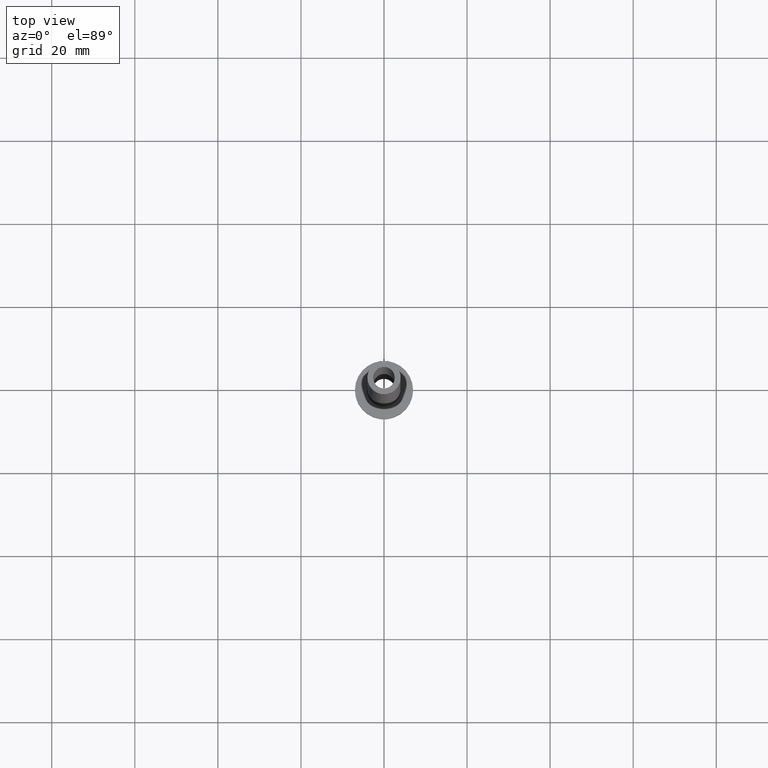
[diagram: clean part render]
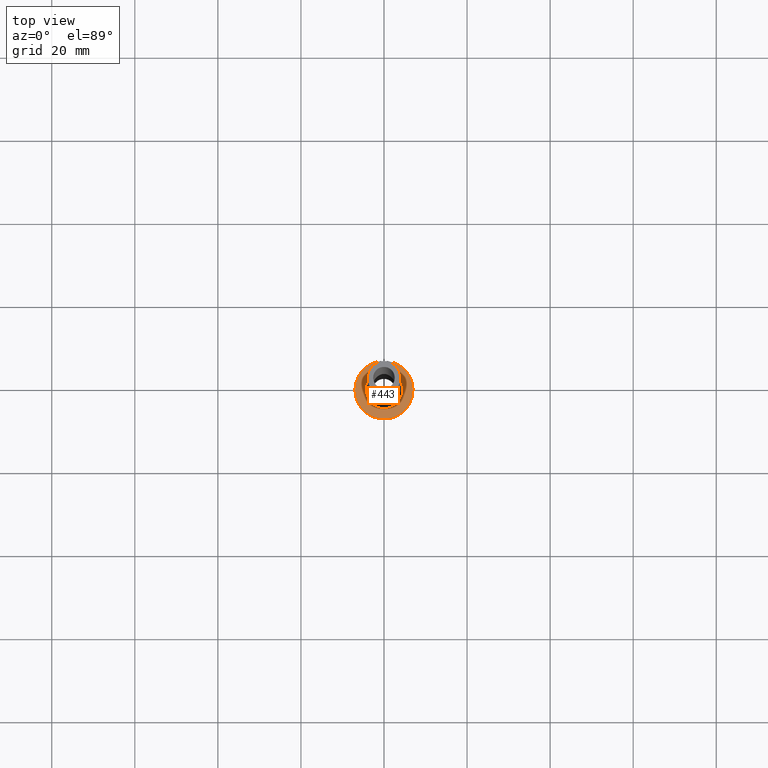
[diagram: same view with one face highlighted and labeled with its STEP entity id]
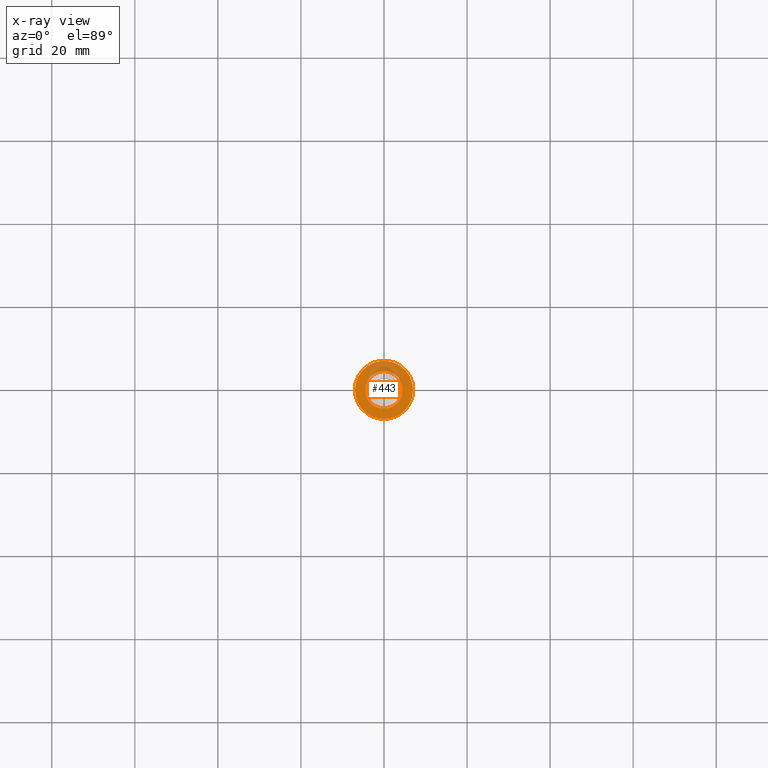
[diagram: x-ray of the same camera — body ghosted, the highlighted face saturated]
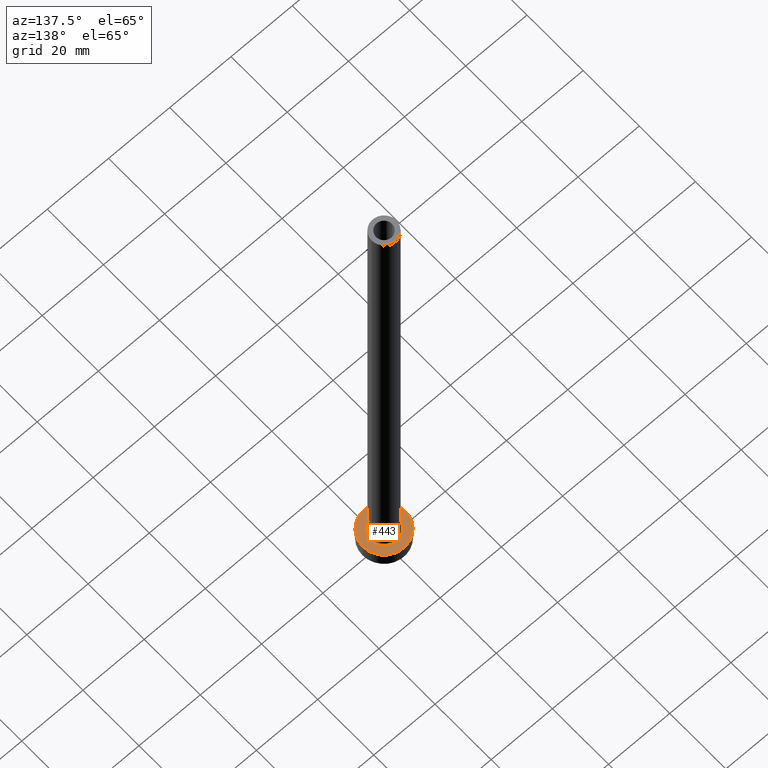
[diagram: same view with one face highlighted and labeled with its STEP entity id]
A machine part, top view. The second image highlights one B-rep face of the part: STEP entity #443.
The next image is the same camera in x-ray: the body ghosted, the highlighted face saturated — about 20% of this face is hidden behind the body in this view.
A second angle (auxiliary view) of the same face is appended — the face is thin or edge-on in the first view.
In plain terms, the highlighted planar face has unit normal (0, 0, 1).
Its self-contained STEP definition (entity closure, byte-faithful):
#25 = AXIS2_PLACEMENT_3D ( 'NONE', #261, #330, #117 ) ;
#39 = VERTEX_POINT ( 'NONE', #137 ) ;
#42 = AXIS2_PLACEMENT_3D ( 'NONE', #64, #55, #271 ) ;
#54 = CARTESIAN_POINT ( 'NONE',  ( 0.000000000000000000, 0.000000000000000000, 5.000000000000000000 ) ) ;
#55 = DIRECTION ( 'NONE',  ( -0.000000000000000000, -0.000000000000000000, -1.000000000000000000 ) ) ;
#57 = DIRECTION ( 'NONE',  ( 0.000000000000000000, 0.000000000000000000, 1.000000000000000000 ) ) ;
#64 = CARTESIAN_POINT ( 'NONE',  ( 0.000000000000000000, 0.000000000000000000, 5.000000000000000000 ) ) ;
#92 = FACE_OUTER_BOUND ( 'NONE', #303, .T. ) ;
#98 = CIRCLE ( 'NONE', #155, 7.000000000000000000 ) ;
#117 = DIRECTION ( 'NONE',  ( 1.000000000000000000, 0.000000000000000000, 0.000000000000000000 ) ) ;
#118 = EDGE_CURVE ( 'NONE', #260, #39, #285, .T. ) ;
#137 = CARTESIAN_POINT ( 'NONE',  ( 4.500000000000000888, 0.000000000000000000, 5.000000000000002665 ) ) ;
#140 = ORIENTED_EDGE ( 'NONE', *, *, #199, .T. ) ;
#142 = AXIS2_PLACEMENT_3D ( 'NONE', #307, #446, #273 ) ;
#149 = EDGE_CURVE ( 'NONE', #267, #325, #361, .T. ) ;
#150 = CARTESIAN_POINT ( 'NONE',  ( 7.000000000000000000, 8.572527594031473190E-16, 5.000000000000000000 ) ) ;
#155 = AXIS2_PLACEMENT_3D ( 'NONE', #357, #222, #430 ) ;
#193 = ORIENTED_EDGE ( 'NONE', *, *, #149, .T. ) ;
#199 = EDGE_CURVE ( 'NONE', #325, #267, #98, .T. ) ;
#222 = DIRECTION ( 'NONE',  ( 0.000000000000000000, 0.000000000000000000, 1.000000000000000000 ) ) ;
#226 = PLANE ( 'NONE',  #322 ) ;
#258 = CARTESIAN_POINT ( 'NONE',  ( -7.000000000000000000, 0.000000000000000000, 5.000000000000000000 ) ) ;
#260 = VERTEX_POINT ( 'NONE', #426 ) ;
#261 = CARTESIAN_POINT ( 'NONE',  ( 0.000000000000000000, 0.000000000000000000, 5.000000000000000000 ) ) ;
#262 = FACE_BOUND ( 'NONE', #348, .T. ) ;
#267 = VERTEX_POINT ( 'NONE', #258 ) ;
#271 = DIRECTION ( 'NONE',  ( 1.000000000000000000, 0.000000000000000000, 0.000000000000000000 ) ) ;
#273 = DIRECTION ( 'NONE',  ( 1.000000000000000000, 0.000000000000000000, 0.000000000000000000 ) ) ;
#285 = CIRCLE ( 'NONE', #42, 4.500000000000000888 ) ;
#288 = EDGE_CURVE ( 'NONE', #39, #260, #412, .T. ) ;
#303 = EDGE_LOOP ( 'NONE', ( #193, #140 ) ) ;
#307 = CARTESIAN_POINT ( 'NONE',  ( 0.000000000000000000, 0.000000000000000000, 5.000000000000000000 ) ) ;
#316 = ORIENTED_EDGE ( 'NONE', *, *, #118, .T. ) ;
#322 = AXIS2_PLACEMENT_3D ( 'NONE', #54, #57, #401 ) ;
#325 = VERTEX_POINT ( 'NONE', #150 ) ;
#330 = DIRECTION ( 'NONE',  ( -0.000000000000000000, -0.000000000000000000, -1.000000000000000000 ) ) ;
#348 = EDGE_LOOP ( 'NONE', ( #353, #316 ) ) ;
#353 = ORIENTED_EDGE ( 'NONE', *, *, #288, .T. ) ;
#357 = CARTESIAN_POINT ( 'NONE',  ( 0.000000000000000000, 0.000000000000000000, 5.000000000000000000 ) ) ;
#361 = CIRCLE ( 'NONE', #142, 7.000000000000000000 ) ;
#401 = DIRECTION ( 'NONE',  ( 1.000000000000000000, 0.000000000000000000, -0.000000000000000000 ) ) ;
#412 = CIRCLE ( 'NONE', #25, 4.500000000000000888 ) ;
#426 = CARTESIAN_POINT ( 'NONE',  ( -4.500000000000000888, 5.510910596163088569E-16, 5.000000000000002665 ) ) ;
#430 = DIRECTION ( 'NONE',  ( 1.000000000000000000, 0.000000000000000000, 0.000000000000000000 ) ) ;
#443 = ADVANCED_FACE ( 'NONE', ( #262, #92 ), #226, .T. ) ;
#446 = DIRECTION ( 'NONE',  ( 0.000000000000000000, 0.000000000000000000, 1.000000000000000000 ) ) ;